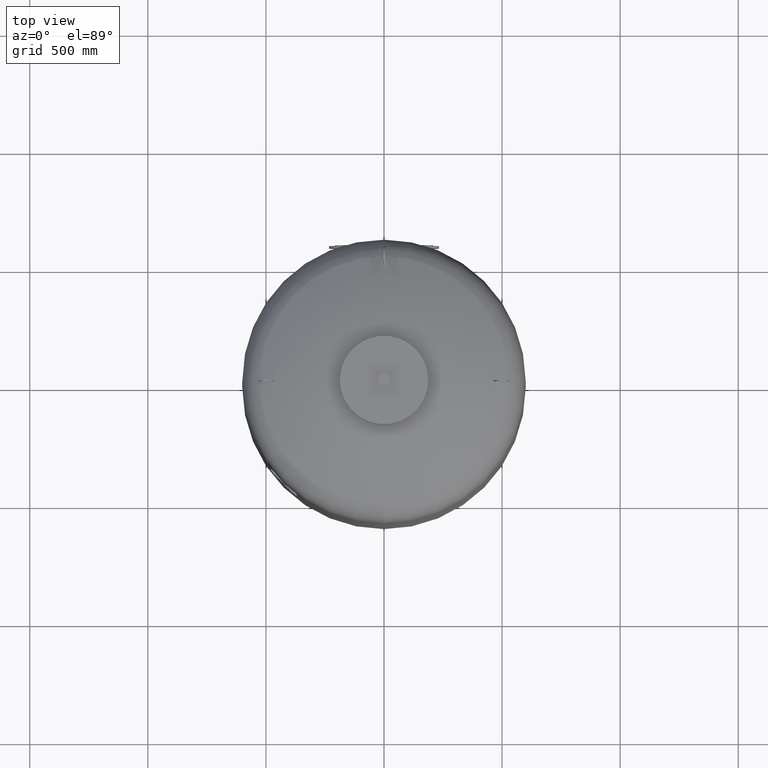
[diagram: clean part render]
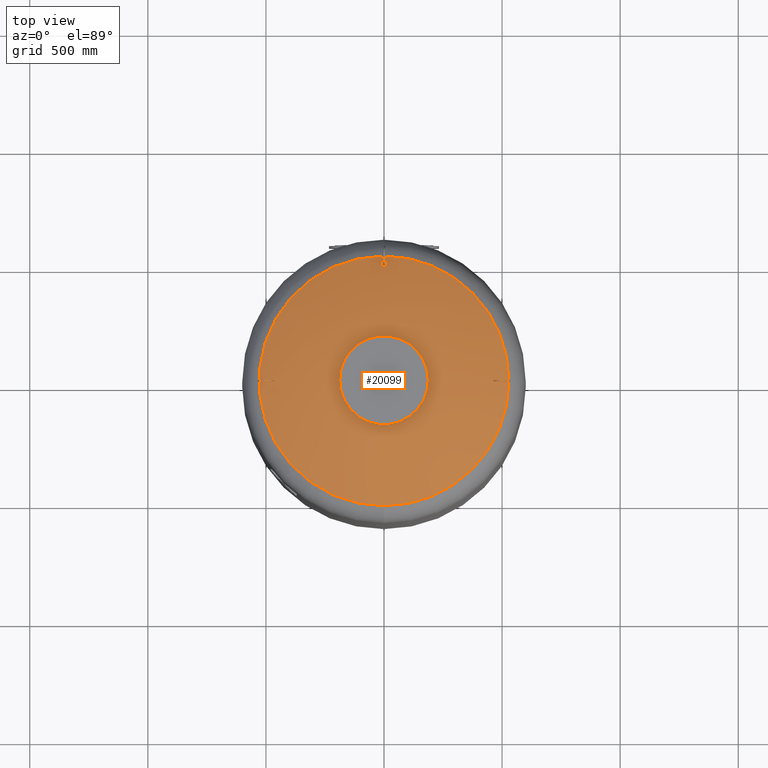
[diagram: same view with one face highlighted and labeled with its STEP entity id]
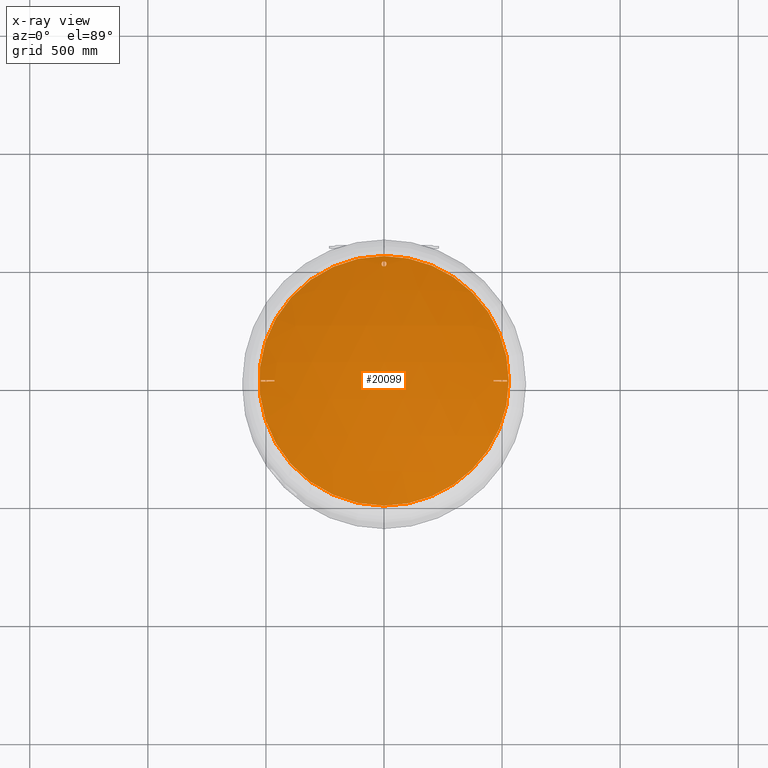
[diagram: x-ray of the same camera — body ghosted, the highlighted face saturated]
A machine part, top view. The second image highlights one B-rep face of the part: STEP entity #20099.
The next image is the same camera in x-ray: the body ghosted, the highlighted face saturated — about 0% of this face is hidden behind the body in this view.
In plain terms, the highlighted spherical surface has radius 1207 mm.
Its self-contained STEP definition (entity closure, byte-faithful):
#19391=CARTESIAN_POINT('',(3.894773E-014,-528.621296296296240,2278.084570483804800));
#19392=VERTEX_POINT('',#19391);
#19408=CARTESIAN_POINT('',(1.036830E-013,528.621296296296240,2278.084570483804800));
#19409=VERTEX_POINT('',#19408);
#19417=CARTESIAN_POINT('',(528.621296296296240,-2.239550E-014,2278.084570483804800));
#19418=VERTEX_POINT('',#19417);
#19419=CARTESIAN_POINT('',(3.410787E-015,-2.239550E-014,2278.084570483804800));
#19420=DIRECTION('',(0.0,0.0,-1.0));
#19421=DIRECTION('',(1.0,0.0,0.0));
#19422=AXIS2_PLACEMENT_3D('',#19419,#19420,#19421);
#19423=CIRCLE('',#19422,528.621296296296240);
#19424=EDGE_CURVE('',#19409,#19418,#19423,.T.);
#19426=CARTESIAN_POINT('',(3.410787E-015,-2.239550E-014,2278.084570483804800));
#19427=DIRECTION('',(0.0,0.0,-1.0));
#19428=DIRECTION('',(1.0,0.0,0.0));
#19429=AXIS2_PLACEMENT_3D('',#19426,#19427,#19428);
#19430=CIRCLE('',#19429,528.621296296296240);
#19431=EDGE_CURVE('',#19418,#19392,#19430,.T.);
#19548=CARTESIAN_POINT('',(-2.007040E-015,505.649999999999860,2288.977681113990900));
#19549=VERTEX_POINT('',#19548);
#19565=CARTESIAN_POINT('',(-1.264167E-015,484.349999999999910,2298.556003782712200));
#19566=VERTEX_POINT('',#19565);
#19573=CARTESIAN_POINT('',(-2.007040E-015,505.649999999999860,2288.977681113990900));
#19574=CARTESIAN_POINT('',(0.665662584297549,505.649999999999860,2288.977681113990900));
#19575=CARTESIAN_POINT('',(1.351770687093055,505.586540768528720,2289.006343822393800));
#19576=CARTESIAN_POINT('',(2.711440963249272,505.322316471514680,2289.125671514436400));
#19577=CARTESIAN_POINT('',(3.385018268838315,505.121615967431920,2289.216307020834800));
#19578=CARTESIAN_POINT('',(4.671659030031331,504.595887700676490,2289.453675611560400));
#19579=CARTESIAN_POINT('',(5.285911664195235,504.270411104392170,2289.600610399233600));
#19580=CARTESIAN_POINT('',(6.417878505985882,503.525973237725340,2289.936594437422200));
#19581=CARTESIAN_POINT('',(6.935591451669527,503.107009891746090,2290.125643340669700));
#19582=CARTESIAN_POINT('',(7.899179737395372,502.177760642695380,2290.544825043460200));
#19583=CARTESIAN_POINT('',(8.368086172563061,501.627357286810370,2290.793043409988500));
#19584=CARTESIAN_POINT('',(9.188061671035127,500.433806541515650,2291.331089151719900));
#19585=CARTESIAN_POINT('',(9.539219073899449,499.790709135051770,2291.620892770933100));
#19586=CARTESIAN_POINT('',(10.100224561864263,498.454426017124770,2292.222810133959700));
#19587=CARTESIAN_POINT('',(10.310462392525917,497.760351114898870,2292.535323620084000));
#19588=CARTESIAN_POINT('',(10.585380396556634,496.369268012084210,2293.161397323186500));
#19589=CARTESIAN_POINT('',(10.650000000000000,495.672249771665920,2293.474961828123900));
#19590=CARTESIAN_POINT('',(10.650000000000000,494.328136578031490,2294.079385679025100));
#19591=CARTESIAN_POINT('',(10.585453694089722,493.631410911690520,2294.392563213996700));
#19592=CARTESIAN_POINT('',(10.310736765036932,492.240729558734190,2295.017401333808700));
#19593=CARTESIAN_POINT('',(10.100625147679906,491.546764270494350,2295.329066489736800));
#19594=CARTESIAN_POINT('',(9.539857037879536,490.210574780593110,2295.928918118605900));
#19595=CARTESIAN_POINT('',(9.188808647865375,489.567459190703400,2296.217505560420200));
#19596=CARTESIAN_POINT('',(8.369020497877592,488.373824638455520,2296.752944631033200));
#19597=CARTESIAN_POINT('',(7.900192687897295,487.823356474835290,2296.999774688893900));
#19598=CARTESIAN_POINT('',(6.936540506419655,486.893778895747120,2297.416486438550200));
#19599=CARTESIAN_POINT('',(6.418662963042111,486.474599944024530,2297.604341560041600));
#19600=CARTESIAN_POINT('',(5.286383442477856,485.729841940405380,2297.938035283821600));
#19601=CARTESIAN_POINT('',(4.671983453209442,485.404260841614930,2298.083876063063600));
#19602=CARTESIAN_POINT('',(3.385112822109917,484.878406691485680,2298.319396709681300));
#19603=CARTESIAN_POINT('',(2.711455124781848,484.677684778344370,2298.409278534069900));
#19604=CARTESIAN_POINT('',(1.351712007087142,484.413449330400060,2298.527596291778100));
#19605=CARTESIAN_POINT('',(0.665611636080549,484.349999999999910,2298.556003782712200));
#19606=CARTESIAN_POINT('',(-1.264167E-015,484.349999999999910,2298.556003782712200));
#19607=B_SPLINE_CURVE_WITH_KNOTS('',3,(#19573,#19574,#19575,#19576,#19577,#19578,#19579,#19580,#19581,#19582,#19583,#19584,#19585,#19586,#19587,#19588,#19589,#19590,#19591,#19592,#19593,#19594,#19595,#19596,#19597,#19598,#19599,#19600,#19601,#19602,#19603,#19604,#19605,#19606),.UNSPECIFIED.,.F.,.U.,(4,2,2,2,2,2,2,2,2,2,2,2,2,2,2,2,4),(0.0,1.996987752892652,3.993975505785304,5.990963258677956,7.987951011570608,10.199226399313966,12.410501787057324,14.621777174800682,16.833052562544040,19.043057104816825,21.253061647089609,23.463066189362394,25.673070731635178,27.669905639876831,29.666740548118483,31.663575456360135,33.660410364601788),.UNSPECIFIED.);
#19608=EDGE_CURVE('',#19549,#19566,#19607,.T.);
#19619=CARTESIAN_POINT('',(-1.264167E-015,484.349999999999910,2298.556003782712200));
#19620=CARTESIAN_POINT('',(-0.665611636080552,484.349999999999910,2298.556003782712200));
#19621=CARTESIAN_POINT('',(-1.351712007087143,484.413449330400060,2298.527596291778100));
#19622=CARTESIAN_POINT('',(-2.711455124781850,484.677684778344370,2298.409278534069900));
#19623=CARTESIAN_POINT('',(-3.385112822109919,484.878406691485680,2298.319396709681300));
#19624=CARTESIAN_POINT('',(-4.671983453209444,485.404260841614930,2298.083876063063600));
#19625=CARTESIAN_POINT('',(-5.286383442477860,485.729841940405380,2297.938035283821600));
#19626=CARTESIAN_POINT('',(-6.418662963042113,486.474599944024530,2297.604341560041600));
#19627=CARTESIAN_POINT('',(-6.936540506419650,486.893778895747120,2297.416486438550200));
#19628=CARTESIAN_POINT('',(-7.900192687897292,487.823356474835290,2296.999774688893900));
#19629=CARTESIAN_POINT('',(-8.369020497877603,488.373824638455520,2296.752944631033600));
#19630=CARTESIAN_POINT('',(-9.188808647865416,489.567459190703400,2296.217505560420200));
#19631=CARTESIAN_POINT('',(-9.539857037879596,490.210574780593220,2295.928918118605900));
#19632=CARTESIAN_POINT('',(-10.100625147679949,491.546764270494460,2295.329066489736800));
#19633=CARTESIAN_POINT('',(-10.310736765036959,492.240729558734240,2295.017401333808700));
#19634=CARTESIAN_POINT('',(-10.585453694089725,493.631410911690520,2294.392563213996700));
#19635=CARTESIAN_POINT('',(-10.650000000000004,494.328136578031490,2294.079385679025100));
#19636=CARTESIAN_POINT('',(-10.650000000000004,495.672249771665860,2293.474961828123900));
#19637=CARTESIAN_POINT('',(-10.585380396556637,496.369268012084210,2293.161397323186500));
#19638=CARTESIAN_POINT('',(-10.310462392525912,497.760351114898920,2292.535323620084000));
#19639=CARTESIAN_POINT('',(-10.100224561864266,498.454426017124770,2292.222810133959700));
#19640=CARTESIAN_POINT('',(-9.539219073899460,499.790709135051770,2291.620892770933100));
#19641=CARTESIAN_POINT('',(-9.188061671035145,500.433806541515590,2291.331089151719900));
#19642=CARTESIAN_POINT('',(-8.368086172563105,501.627357286810200,2290.793043409988500));
#19643=CARTESIAN_POINT('',(-7.899179737395371,502.177760642695380,2290.544825043460600));
#19644=CARTESIAN_POINT('',(-6.935591451669527,503.107009891746090,2290.125643340669700));
#19645=CARTESIAN_POINT('',(-6.417878505985903,503.525973237725280,2289.936594437422200));
#19646=CARTESIAN_POINT('',(-5.285911664195240,504.270411104392170,2289.600610399233600));
#19647=CARTESIAN_POINT('',(-4.671659030031345,504.595887700676490,2289.453675611560400));
#19648=CARTESIAN_POINT('',(-3.385018268838326,505.121615967431920,2289.216307020834800));
#19649=CARTESIAN_POINT('',(-2.711440963249284,505.322316471514680,2289.125671514436400));
#19650=CARTESIAN_POINT('',(-1.351770687093066,505.586540768528720,2289.006343822393800));
#19651=CARTESIAN_POINT('',(-0.665662584297557,505.649999999999860,2288.977681113990900));
#19652=CARTESIAN_POINT('',(-2.007040E-015,505.649999999999860,2288.977681113990900));
#19653=B_SPLINE_CURVE_WITH_KNOTS('',3,(#19619,#19620,#19621,#19622,#19623,#19624,#19625,#19626,#19627,#19628,#19629,#19630,#19631,#19632,#19633,#19634,#19635,#19636,#19637,#19638,#19639,#19640,#19641,#19642,#19643,#19644,#19645,#19646,#19647,#19648,#19649,#19650,#19651,#19652),.UNSPECIFIED.,.F.,.U.,(4,2,2,2,2,2,2,2,2,2,2,2,2,2,2,2,4),(33.660410364601788,35.657245272843440,37.654080181085092,39.650915089326745,41.647749997568390,43.857754539841181,46.067759082113966,48.277763624386751,50.487768166659535,52.699043554402870,54.910318942146205,57.121594329889540,59.332869717632875,61.329857470525539,63.326845223418196,65.323832976310854,67.320820729203518),.UNSPECIFIED.);
#19654=EDGE_CURVE('',#19566,#19549,#19653,.T.);
#19682=CARTESIAN_POINT('',(-463.451600218966230,-3.000000000000292,2307.474142479079100));
#19683=VERTEX_POINT('',#19682);
#19684=CARTESIAN_POINT('',(-521.618748390259610,-2.999999999999862,2281.464000933324300));
#19685=VERTEX_POINT('',#19684);
#19686=CARTESIAN_POINT('',(1.015543E-013,-3.000000000004973,1193.0));
#19687=DIRECTION('',(0.0,-1.0,0.0));
#19688=DIRECTION('',(0.0,0.0,1.0));
#19689=AXIS2_PLACEMENT_3D('',#19686,#19687,#19688);
#19690=CIRCLE('',#19689,1206.996271742378000);
#19691=EDGE_CURVE('',#19683,#19685,#19690,.T.);
#19734=CARTESIAN_POINT('',(-463.451600218966290,2.999999999999727,2307.474142479079500));
#19735=VERTEX_POINT('',#19734);
#19736=CARTESIAN_POINT('',(-143.673995061822890,7.801844E-013,1153.196972395376000));
#19737=DIRECTION('',(0.963701753162816,-6.720348E-015,0.266981143436978));
#19738=DIRECTION('',(-0.266981143436977,0.0,0.963701753162815));
#19739=AXIS2_PLACEMENT_3D('',#19736,#19737,#19738);
#19740=CIRCLE('',#19739,1197.757280143385700);
#19741=EDGE_CURVE('',#19735,#19683,#19740,.T.);
#19784=CARTESIAN_POINT('',(-521.618748390259730,3.000000000000095,2281.464000933324300));
#19785=VERTEX_POINT('',#19784);
#19786=CARTESIAN_POINT('',(-204.387205511080400,1.203566E-012,1136.377160358846400));
#19787=DIRECTION('',(-0.963701753162815,6.720348E-015,-0.266981143436977));
#19788=DIRECTION('',(0.266981143436977,0.0,-0.963701753162815));
#19789=AXIS2_PLACEMENT_3D('',#19786,#19787,#19788);
#19790=CIRCLE('',#19789,1188.220823018324600);
#19791=EDGE_CURVE('',#19685,#19785,#19790,.T.);
#19816=CARTESIAN_POINT('',(1.458865E-013,2.999999999995042,1193.0));
#19817=DIRECTION('',(0.0,1.0,0.0));
#19818=DIRECTION('',(0.0,0.0,-1.0));
#19819=AXIS2_PLACEMENT_3D('',#19816,#19817,#19818);
#19820=CIRCLE('',#19819,1206.996271742378000);
#19821=EDGE_CURVE('',#19785,#19735,#19820,.T.);
#19856=CARTESIAN_POINT('',(463.451600218966350,2.999999999999727,2307.474142479080000));
#19857=VERTEX_POINT('',#19856);
#19858=CARTESIAN_POINT('',(521.618748390259730,3.000000000000095,2281.464000933324300));
#19859=VERTEX_POINT('',#19858);
#19860=CARTESIAN_POINT('',(1.015543E-013,2.999999999995042,1193.0));
#19861=DIRECTION('',(0.0,1.0,0.0));
#19862=DIRECTION('',(0.0,0.0,-1.0));
#19863=AXIS2_PLACEMENT_3D('',#19860,#19861,#19862);
#19864=CIRCLE('',#19863,1206.996271742378000);
#19865=EDGE_CURVE('',#19857,#19859,#19864,.T.);
#19908=CARTESIAN_POINT('',(463.451600218966230,-3.000000000000292,2307.474142479079100));
#19909=VERTEX_POINT('',#19908);
#19910=CARTESIAN_POINT('',(143.673995061822890,7.801844E-013,1153.196972395376000));
#19911=DIRECTION('',(-0.963701753162816,-6.720348E-015,0.266981143436978));
#19912=DIRECTION('',(-0.266981143436977,0.0,-0.963701753162815));
#19913=AXIS2_PLACEMENT_3D('',#19910,#19911,#19912);
#19914=CIRCLE('',#19913,1197.757280143385700);
#19915=EDGE_CURVE('',#19909,#19857,#19914,.T.);
#19979=CARTESIAN_POINT('',(521.618748390259610,-2.999999999999862,2281.464000933324300));
#19980=VERTEX_POINT('',#19979);
#19981=CARTESIAN_POINT('',(204.387205511080450,1.203566E-012,1136.377160358846400));
#19982=DIRECTION('',(0.963701753162815,6.720348E-015,-0.266981143436977));
#19983=DIRECTION('',(0.266981143436977,0.0,0.963701753162815));
#19984=AXIS2_PLACEMENT_3D('',#19981,#19982,#19983);
#19985=CIRCLE('',#19984,1188.220823018324600);
#19986=EDGE_CURVE('',#19859,#19980,#19985,.T.);
#20050=CARTESIAN_POINT('',(1.458865E-013,-3.000000000004973,1193.0));
#20051=DIRECTION('',(0.0,-1.0,0.0));
#20052=DIRECTION('',(0.0,0.0,1.0));
#20053=AXIS2_PLACEMENT_3D('',#20050,#20051,#20052);
#20054=CIRCLE('',#20053,1206.996271742378000);
#20055=EDGE_CURVE('',#19980,#19909,#20054,.T.);
#20067=CARTESIAN_POINT('',(1.237204E-013,-2.217223E-013,1193.0));
#20068=DIRECTION('',(0.0,-1.0,0.0));
#20069=DIRECTION('',(-1.0,0.0,0.0));
#20070=AXIS2_PLACEMENT_3D('',#20067,#20068,#20069);
#20071=SPHERICAL_SURFACE('',#20070,1207.000000000000200);
#20072=ORIENTED_EDGE('',*,*,#19608,.T.);
#20073=ORIENTED_EDGE('',*,*,#19654,.T.);
#20074=EDGE_LOOP('',(#20072,#20073));
#20075=FACE_OUTER_BOUND('',#20074,.T.);
#20076=ORIENTED_EDGE('',*,*,#19741,.T.);
#20077=ORIENTED_EDGE('',*,*,#19691,.T.);
#20078=ORIENTED_EDGE('',*,*,#19791,.T.);
#20079=ORIENTED_EDGE('',*,*,#19821,.T.);
#20080=EDGE_LOOP('',(#20076,#20077,#20078,#20079));
#20081=FACE_BOUND('',#20080,.T.);
#20082=ORIENTED_EDGE('',*,*,#19915,.T.);
#20083=ORIENTED_EDGE('',*,*,#19865,.T.);
#20084=ORIENTED_EDGE('',*,*,#19986,.T.);
#20085=ORIENTED_EDGE('',*,*,#20055,.T.);
#20086=EDGE_LOOP('',(#20082,#20083,#20084,#20085));
#20087=FACE_BOUND('',#20086,.T.);
#20088=ORIENTED_EDGE('',*,*,#19431,.F.);
#20089=ORIENTED_EDGE('',*,*,#19424,.F.);
#20090=CARTESIAN_POINT('',(3.410787E-015,-2.239550E-014,2278.084570483804800));
#20091=DIRECTION('',(0.0,0.0,-1.0));
#20092=DIRECTION('',(1.0,0.0,0.0));
#20093=AXIS2_PLACEMENT_3D('',#20090,#20091,#20092);
#20094=CIRCLE('',#20093,528.621296296296240);
#20095=EDGE_CURVE('',#19392,#19409,#20094,.T.);
#20096=ORIENTED_EDGE('',*,*,#20095,.F.);
#20097=EDGE_LOOP('',(#20088,#20089,#20096));
#20098=FACE_BOUND('',#20097,.T.);
#20099=ADVANCED_FACE('',(#20075,#20081,#20087,#20098),#20071,.T.);